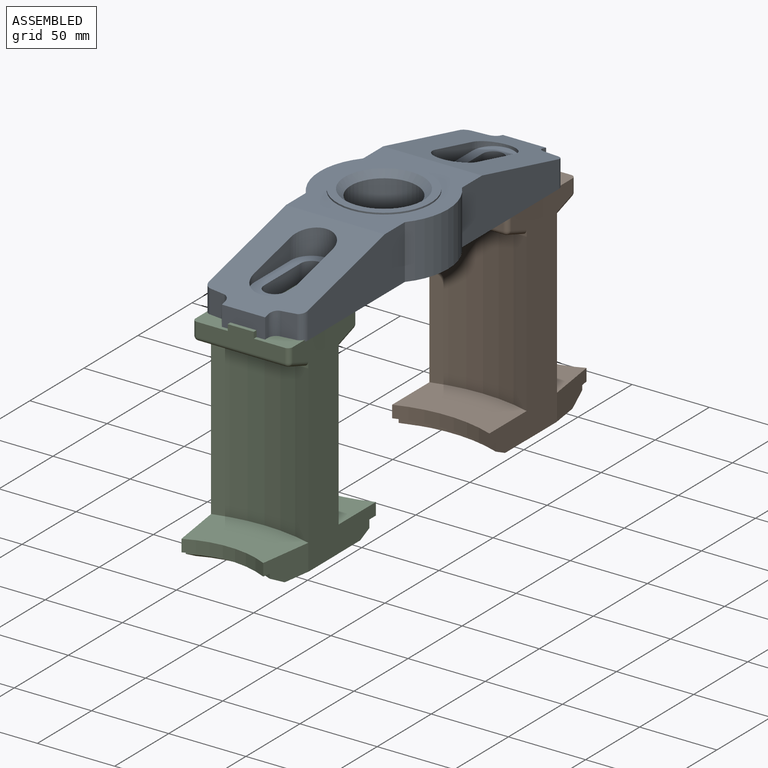
[diagram: assembled view]
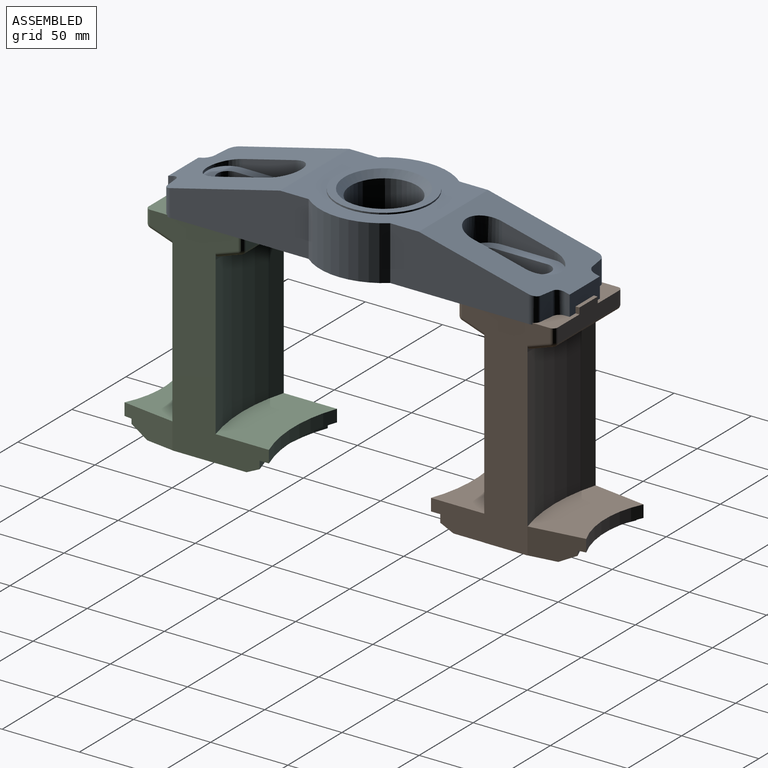
[diagram: assembled view, second angle]
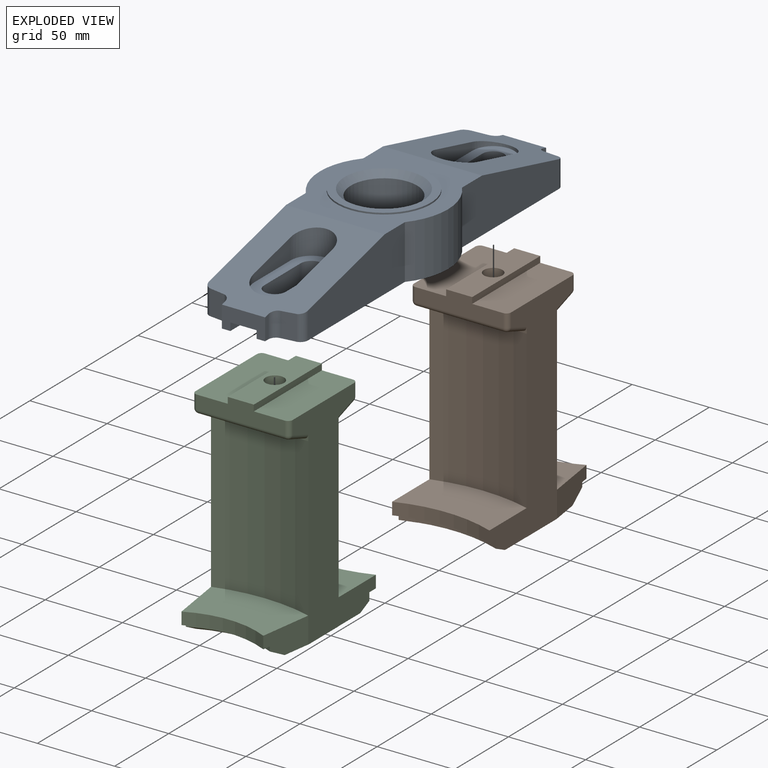
[diagram: exploded view]
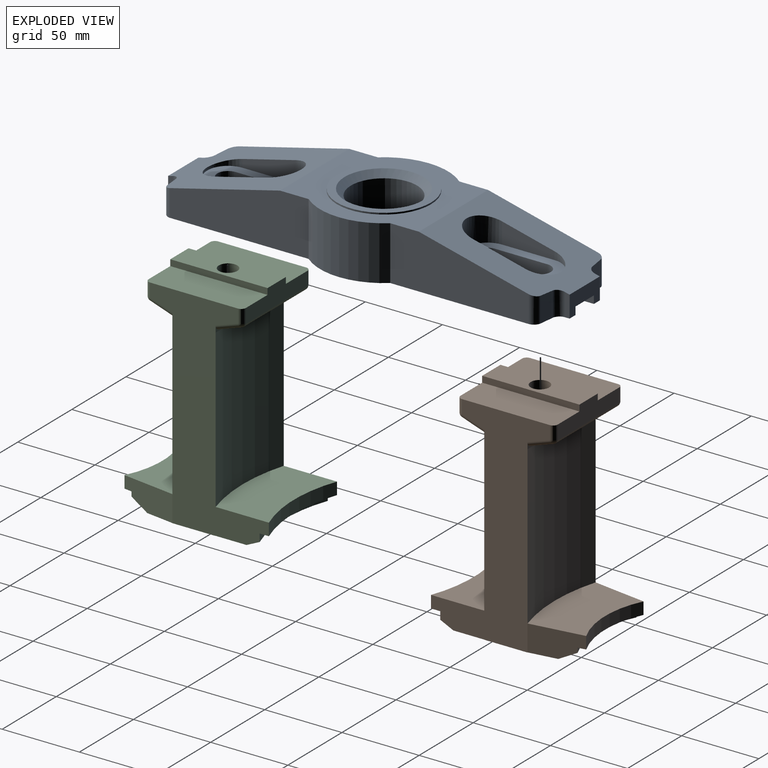
[diagram: exploded view, second angle]
ASSEMBLY  parts=3 mates=2
PART A: 57 faces, bbox 260x83x36 mm
  f0: plane 34x11mm, normal (0,-1,0), area 374mm2, adj f1,f3,f42,f56
  f1: cylinder r=7mm len=14mm, axis (0,0,-1), area 241.9mm2, adj f0,f2,f42,f56
  f2: plane 34x11mm, normal (0,1,0), area 374mm2, adj f1,f3,f42,f56
  f3: cylinder r=7mm len=14mm, axis (0,0,-1), area 241.9mm2, adj f0,f2,f42,f56
  f4: plane 85x64mm, normal (0.24,0,0.97), area 3752.8mm2, adj f10,f11,f24,f25,f26,f27,f28,f29
  f5: plane 34x11mm, normal (0,-1,0), area 374mm2, adj f6,f8,f45,f51
  f6: cylinder r=7mm len=14mm, axis (0,0,-1), area 241.9mm2, adj f5,f7,f45,f51
  f7: plane 34x11mm, normal (0,1,0), area 374mm2, adj f6,f8,f45,f51
  f8: cylinder r=7mm len=14mm, axis (0,0,-1), area 241.9mm2, adj f5,f7,f45,f51
  f9: plane 260x33mm, normal (0,0,-1), area 5776.7mm2, adj f10,f17,f18,f19,f20,f21,f22,f29
  f10: plane 28x14mm, normal (1,0,0), area 307mm2, adj f4,f9,f28,f29,f35,f44,f45,f46
  f11: plane 90x83mm, normal (0,0,1), area 3524mm2, adj f4,f12,f21,f23,f24,f33,f34,f37
  f12: plane 89.58x35mm, normal (0,-1,0), area 2512.4mm2, adj f11,f13,f23,f35,f37
  f13: cylinder r=5mm len=17.46mm, axis (0,0,-1), area 109.4mm2, adj f12,f14,f35,f37
  f14: plane 16.27x9.31mm, normal (-0.99,-0.13,0), area 151.3mm2, adj f13,f15,f35,f37
  f15: cylinder r=5mm len=15.98mm, axis (0,0,-1), area 122mm2, adj f14,f16,f35,f37
  f16: plane 14.74x3mm, normal (0,-1,0), area 43.1mm2, adj f15,f35,f36,f37
  f17: plane 14.74x3mm, normal (0,1,0), area 43.1mm2, adj f9,f18,f36,f37
  f18: cylinder r=5mm len=15.98mm, axis (0,0,-1), area 122mm2, adj f9,f17,f19,f37
  f19: plane 16.27x9.31mm, normal (-0.99,0.13,0), area 151.3mm2, adj f9,f18,f20,f37
  f20: cylinder r=5mm len=17.46mm, axis (0,0,-1), area 109.4mm2, adj f9,f19,f21,f37
  f21: plane 89.58x35mm, normal (0,1,0), area 2512.4mm2, adj f9,f11,f20,f34,f37
  f22: cylinder r=21.5mm len=43mm, axis (0,0,-1), area 4148.1mm2, adj f9,f35,f40,f41,f42,f43,f44,f45
  f23: cylinder r=41.5mm len=52.85mm, axis (0,0,-1), area 2005.2mm2, adj f11,f12,f24,f35
  f24: plane 89.58x35mm, normal (0,-1,0), area 2512.4mm2, adj f4,f11,f23,f25,f35
  f25: cylinder r=5mm len=17.46mm, axis (0,0,-1), area 109.4mm2, adj f4,f24,f26,f35
  f26: plane 16.27x9.31mm, normal (0.99,-0.13,0), area 151.3mm2, adj f4,f25,f27,f35
  f27: cylinder r=5mm len=15.98mm, axis (0,0,-1), area 122mm2, adj f4,f26,f28,f35
  f28: plane 14.74x3mm, normal (0,-1,0), area 43.1mm2, adj f4,f10,f27,f35
  f29: plane 14.74x3mm, normal (0,1,0), area 43.1mm2, adj f4,f9,f10,f30
  f30: cylinder r=5mm len=15.98mm, axis (0,0,-1), area 122mm2, adj f4,f9,f29,f31
  f31: plane 16.27x9.31mm, normal (0.99,0.13,0), area 151.3mm2, adj f4,f9,f30,f32
  f32: cylinder r=5mm len=17.46mm, axis (0,0,-1), area 109.4mm2, adj f4,f9,f31,f33
  f33: plane 89.58x35mm, normal (0,1,0), area 2512.4mm2, adj f4,f9,f11,f32,f34
  f34: cylinder r=41.5mm len=52.85mm, axis (0,0,-1), area 2005.2mm2, adj f9,f11,f21,f33
  f35: plane 260x33mm, normal (0,0,-1), area 5776.7mm2, adj f10,f12,f13,f14,f15,f16,f22,f23
  f36: plane 28x14mm, normal (-1,0,0), area 307mm2, adj f9,f16,f17,f35,f37,f41,f42,f43
  f37: plane 85x64mm, normal (-0.24,0,0.97), area 3752.8mm2, adj f11,f12,f13,f14,f15,f16,f17,f18
  f38: cylinder r=30.5mm len=61mm, axis (0,0,-1), area 191.6mm2, adj f11,f39
  f39: plane 61x61mm, normal (0,0,1), area 879.6mm2, adj f38,f40
  f40: cone r=25.5mm half-angle=45deg, axis (0,0,1), area 835.3mm2, adj f22,f39
  f41: plane 110.25x5mm, normal (0,1,0), area 551.3mm2, adj f22,f35,f36,f42
  f42: plane 110.25x17mm, normal (0,0,-1), area 1224.3mm2, adj f0,f1,f2,f3,f22,f36,f41,f43
  f43: plane 110.25x5mm, normal (0,-1,0), area 551.3mm2, adj f9,f22,f36,f42
  f44: plane 110.25x5mm, normal (0,-1,0), area 551.3mm2, adj f9,f10,f22,f45
  f45: plane 110.25x17mm, normal (0,0,-1), area 1224.3mm2, adj f5,f6,f7,f8,f10,f22,f44,f46
  f46: plane 110.25x5mm, normal (0,1,0), area 551.3mm2, adj f10,f22,f35,f45
  f47: plane 34x13.56mm, normal (0,-1,0), area 318.4mm2, adj f4,f48,f50,f51
  f48: cylinder r=13.5mm len=27mm, axis (0,0,1), area 665.4mm2, adj f4,f47,f49,f51
  f49: plane 34x13.56mm, normal (0,1,0), area 318.4mm2, adj f4,f48,f50,f51
  f50: cylinder r=13.5mm len=27mm, axis (0,0,1), area 129mm2, adj f4,f47,f49,f51
  f51: plane 61x27mm, normal (0,0,1), area 860.6mm2, adj f5,f6,f7,f8,f47,f48,f49,f50
  f52: plane 34x13.56mm, normal (0,1,0), area 318.4mm2, adj f37,f53,f55,f56
  f53: cylinder r=13.5mm len=27mm, axis (0,0,1), area 665.4mm2, adj f37,f52,f54,f56
  f54: plane 34x13.56mm, normal (0,-1,0), area 318.4mm2, adj f37,f53,f55,f56
  f55: cylinder r=13.5mm len=27mm, axis (0,0,1), area 129mm2, adj f37,f52,f54,f56
  f56: plane 61x27mm, normal (0,0,1), area 860.6mm2, adj f0,f1,f2,f3,f52,f53,f54,f55
PART B: 50 faces, bbox 68.7x97.1x141.1 mm
  f0: plane 34.5x16.92mm, normal (0.99,-0.14,0), area 509.9mm2, adj f1,f2,f3,f44,f45,f46,f47
  f1: plane 63x18.11mm, normal (0,0,-1), area 854.7mm2, adj f0,f13,f43,f47
  f2: plane 63x39.11mm, normal (0,0,1), area 1975mm2, adj f0,f20,f43,f44
  f3: plane 137.12x77.12mm, normal (1,0,0), area 4677.8mm2, adj f0,f4,f5,f10,f11,f13,f14,f15
  f4: cylinder r=90mm len=63mm, axis (0,0,1), area 510mm2, adj f3,f9,f19,f41
  f5: plane 63x20.01mm, normal (0,0,-1), area 1040.9mm2, adj f3,f9,f15,f42
  f6: plane 63x16.9mm, normal (0,0,1), area 951.6mm2, adj f7,f8,f22,f24,f48
  f7: plane 57x12.86mm, normal (0,-1,0), area 572.5mm2, adj f6,f22,f23,f24,f25,f26,f29,f32
  f8: plane 57x12.86mm, normal (0,1,0), area 572.5mm2, adj f6,f22,f23,f24,f25,f34,f35,f39
  f9: plane 137.12x77.12mm, normal (-1,0,0), area 4677.8mm2, adj f4,f5,f10,f11,f13,f14,f15,f17
  f10: plane 63x4.17mm, normal (0,-1,0), area 67.1mm2, adj f3,f9,f12,f21,f27,f28
  f11: plane 63x4.17mm, normal (0,1,0), area 67.1mm2, adj f3,f9,f16,f18,f33,f36
  f12: plane 57x15.47mm, normal (0,-0.32,-0.95), area 932.4mm2, adj f10,f27,f28,f32
  f13: plane 63x0.08mm, normal (0,-1,0), area 4.8mm2, adj f1,f3,f9,f14
  f14: plane 63x28mm, normal (0,0,-1), area 1764mm2, adj f3,f9,f13,f15
  f15: plane 63x0.08mm, normal (0,1,0), area 4.8mm2, adj f3,f5,f9,f14
  f16: plane 57x15.47mm, normal (0,0.32,-0.95), area 932.4mm2, adj f11,f33,f36,f39
  f17: cylinder r=110mm len=102mm, axis (0,0,-1), area 6517.2mm2, adj f3,f9,f18,f19
  f18: plane 63x4.61mm, normal (0,0,-1), area 194.3mm2, adj f11,f17
  f19: plane 63x39.11mm, normal (0,0,1), area 2127.2mm2, adj f3,f4,f9,f17
  f20: cylinder r=110mm len=102mm, axis (0,0,-1), area 6517.2mm2, adj f2,f3,f9,f21
  f21: plane 63x4.61mm, normal (0,0,-1), area 194.3mm2, adj f10,f20
  f22: plane 63x4mm, normal (-1,0,0), area 252mm2, adj f6,f7,f8,f23
  f23: plane 63x23.05mm, normal (0,0,1), area 1448.3mm2, adj f7,f8,f9,f22,f29,f35
  f24: plane 63x4mm, normal (1,0,0), area 252mm2, adj f6,f7,f8,f25
  f25: plane 63x23.05mm, normal (0,0,1), area 1448.3mm2, adj f3,f7,f8,f24,f26,f34
  f26: cylinder r=3mm len=8.86mm, axis (0,0,1), area 41.7mm2, adj f3,f7,f25,f30
  f27: cylinder r=3mm len=16.45mm, axis (0,-0.95,0.32), area 75.3mm2, adj f3,f10,f12,f30
  f28: cylinder r=3mm len=16.45mm, axis (0,0.95,-0.32), area 75.3mm2, adj f9,f10,f12,f31
  f29: cylinder r=3mm len=8.86mm, axis (0,0,-1), area 41.7mm2, adj f7,f9,f23,f31
  f30: sphere r=3mm, area 11.2mm2, adj f26,f27,f32
  f31: sphere r=3mm, area 11.2mm2, adj f28,f29,f32
  f32: cylinder r=3mm len=57mm, axis (-1,0,0), area 212.1mm2, adj f7,f12,f30,f31
  f33: cylinder r=3mm len=16.45mm, axis (0,-0.95,-0.32), area 75.3mm2, adj f3,f11,f16,f37
  f34: cylinder r=3mm len=8.86mm, axis (0,0,-1), area 41.7mm2, adj f3,f8,f25,f37
  f35: cylinder r=3mm len=8.86mm, axis (0,0,1), area 41.7mm2, adj f8,f9,f23,f38
  f36: cylinder r=3mm len=16.45mm, axis (0,0.95,0.32), area 75.3mm2, adj f9,f11,f16,f38
  f37: sphere r=3mm, area 11.2mm2, adj f33,f34,f39
  f38: sphere r=3mm, area 11.2mm2, adj f35,f36,f39
  f39: cylinder r=3mm len=57mm, axis (-1,0,0), area 212.1mm2, adj f8,f16,f37,f38
  f40: cylinder r=90mm len=63mm, axis (0,0,-1), area 321.8mm2, adj f3,f9,f41,f42
  f41: plane 63x11.69mm, normal (0,0,-1), area 378mm2, adj f3,f4,f9,f40
  f42: cone r=90mm half-angle=63.4deg, axis (0,0,-1), area 575.4mm2, adj f3,f5,f9,f40
  f43: plane 34.5x16.92mm, normal (-0.99,-0.14,0), area 509.9mm2, adj f1,f2,f9,f44,f45,f46,f47
  f44: cylinder r=60mm len=53mm, axis (0,0,1), area 435mm2, adj f0,f2,f43,f46
  f45: cylinder r=60mm len=54.45mm, axis (0,0,-1), area 169.5mm2, adj f0,f43,f46,f47
  f46: plane 54.45x11.53mm, normal (0,0,-1), area 288.1mm2, adj f0,f43,f44,f45
  f47: cone r=60mm half-angle=61.4deg, axis (0,0,-1), area 726.6mm2, adj f0,f1,f43,f45
  f48: cylinder r=6mm len=27mm, axis (0,0,1), area 1017.9mm2, adj f6,f49
  f49: plane 12x12mm, normal (0,0,1), area 113.1mm2, adj f48
PART C: same geometry as B
PLACE A rot(axis=(0,0,1),90deg) t=(189.16,-85.34,57.83)mm fixed
PLACE B rot(axis=(0,0,1),180deg) t=(220.66,15.66,-61.17)mm
PLACE C t=(157.66,-186.34,-61.17)mm
MATE planar C.f48 <-> A.f1  axis (0,0,1) through (189.16,-186.34,62.83)mm
MATE planar A.f6 <-> B.f48  axis (0,0,-1) through (189.16,15.66,62.83)mm
